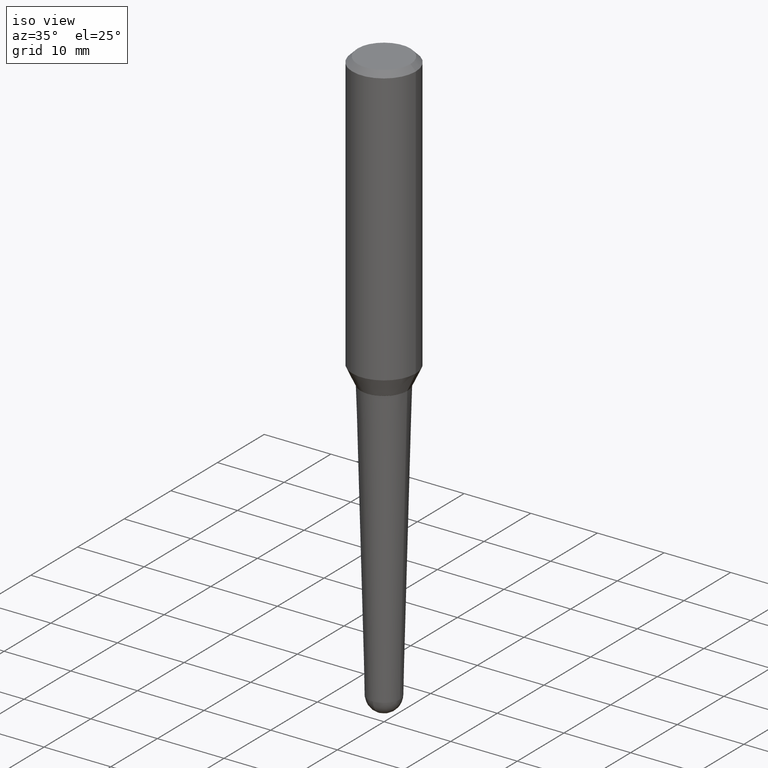
[diagram: clean part render]
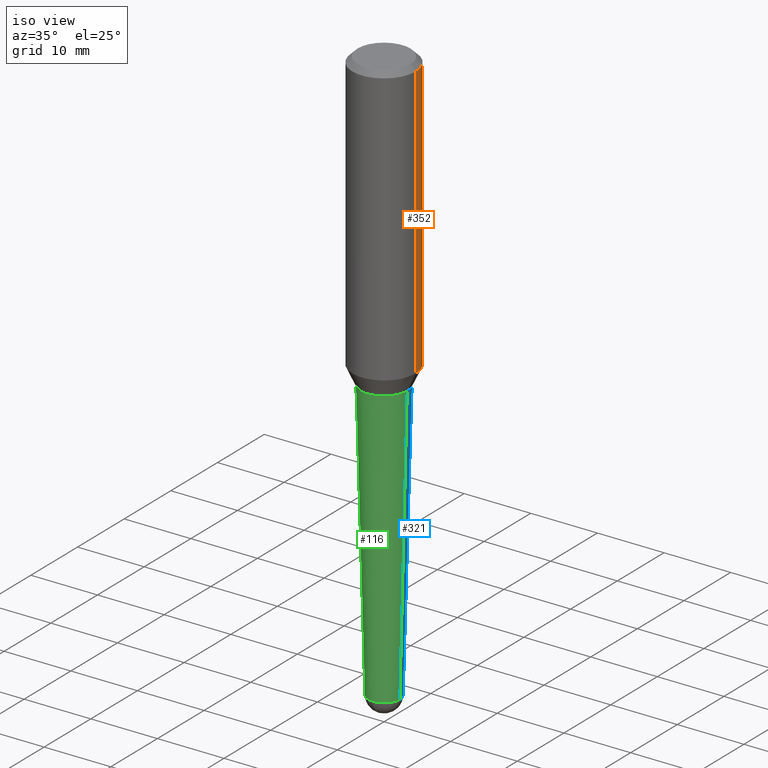
[diagram: same view with three faces highlighted in distinct colors, each labeled with its STEP entity id]
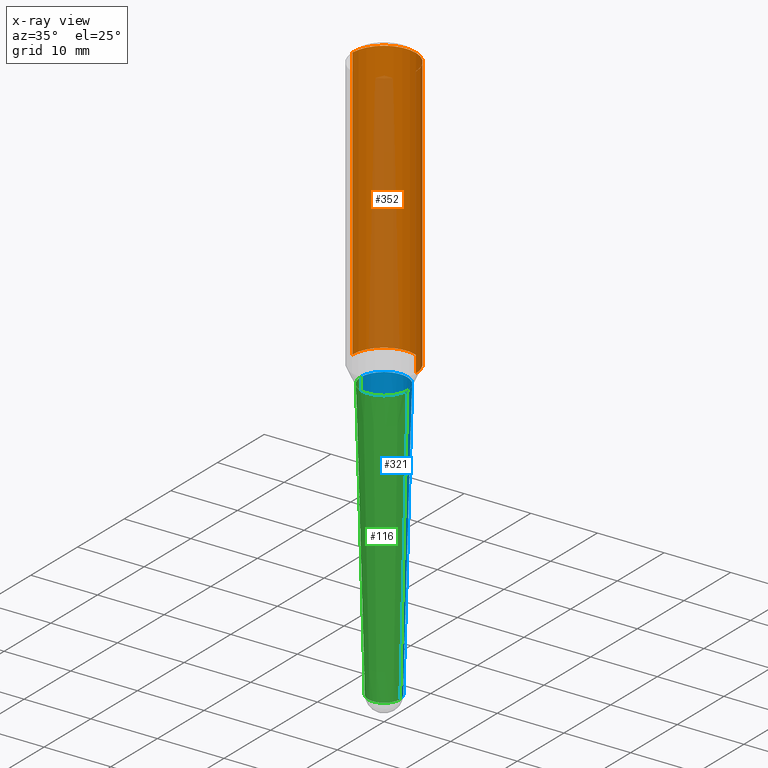
[diagram: x-ray of the same camera — body ghosted, the three highlighted faces saturated]
A machine part, iso view with three faces highlighted in distinct colors.
The next image is the same camera in x-ray (body ghosted, the three faces saturated) — at least one of them is partly hidden behind the body in this view.
Their STEP definitions:

[orange] entity #352 — the highlighted cylindrical surface (partial cylindrical patch) has radius 4.7625 mm, axis along (-0, 0, 1).
#49 = VERTEX_POINT ( 'NONE', #69 ) ;
#50 = DIRECTION ( 'NONE',  ( -2.445468806185136597E-29, 3.491481338843145583E-15, 1.000000000000000000 ) ) ;
#54 = CARTESIAN_POINT ( 'NONE',  ( -0.1875000000000001110, 1.332267629550190807E-15, 5.931196827434205055E-16 ) ) ;
#69 = CARTESIAN_POINT ( 'NONE',  ( -0.1874999999999999722, -1.591897828901198296E-15, -0.03125000000000003469 ) ) ;
#83 = VECTOR ( 'NONE', #419, 39.37007874015748143 ) ;
#101 = ORIENTED_EDGE ( 'NONE', *, *, #399, .T. ) ;
#109 = VECTOR ( 'NONE', #293, 39.37007874015748143 ) ;
#115 = DIRECTION ( 'NONE',  ( -2.445468806185136597E-29, 3.491481338843145583E-15, 1.000000000000000000 ) ) ;
#152 = LINE ( 'NONE', #54, #83 ) ;
#185 = CARTESIAN_POINT ( 'NONE',  ( 0.1875000000000002220, -7.048527627130101747E-15, -1.643778547865743178 ) ) ;
#192 = DIRECTION ( 'NONE',  ( 1.000000000000000000, -6.982962677686265133E-15, 0.000000000000000000 ) ) ;
#194 = CARTESIAN_POINT ( 'NONE',  ( 0.1874999999999999722, -1.418414293905023123E-15, -0.03125000000000003469 ) ) ;
#210 = CIRCLE ( 'NONE', #415, 0.1874999999999999722 ) ;
#212 = ORIENTED_EDGE ( 'NONE', *, *, #372, .T. ) ;
#232 = FACE_OUTER_BOUND ( 'NONE', #412, .T. ) ;
#257 = CIRCLE ( 'NONE', #413, 0.1875000000000002220 ) ;
#286 = AXIS2_PLACEMENT_3D ( 'NONE', #302, #115, #332 ) ;
#293 = DIRECTION ( 'NONE',  ( -2.445468806185136877E-29, 3.491481338843145188E-15, 1.000000000000000000 ) ) ;
#302 = CARTESIAN_POINT ( 'NONE',  ( -1.450455682483482035E-44, 2.070866303999251778E-30, 5.931196827434296760E-16 ) ) ;
#332 = DIRECTION ( 'NONE',  ( 1.000000000000000000, -6.982962677686266711E-15, 4.852736867747363404E-29 ) ) ;
#340 = LINE ( 'NONE', #416, #109 ) ;
#341 = CARTESIAN_POINT ( 'NONE',  ( -0.1875000000000002220, -4.406954495513735735E-15, -1.643778547865743178 ) ) ;
#344 = VERTEX_POINT ( 'NONE', #194 ) ;
#352 = ADVANCED_FACE ( 'NONE', ( #232 ), #457, .T. ) ;
#355 = VERTEX_POINT ( 'NONE', #341 ) ;
#364 = ORIENTED_EDGE ( 'NONE', *, *, #423, .F. ) ;
#365 = DIRECTION ( 'NONE',  ( -2.445468806185136597E-29, 3.491481338843145583E-15, 1.000000000000000000 ) ) ;
#372 = EDGE_CURVE ( 'NONE', #355, #49, #152, .T. ) ;
#399 = EDGE_CURVE ( 'NONE', #418, #355, #257, .T. ) ;
#400 = CARTESIAN_POINT ( 'NONE',  ( 7.642090019328561499E-31, -1.091087918388484350E-16, -0.03125000000000003469 ) ) ;
#406 = CARTESIAN_POINT ( 'NONE',  ( 4.019809163081975824E-29, -5.739222125063926739E-15, -1.643778547865743178 ) ) ;
#412 = EDGE_LOOP ( 'NONE', ( #101, #212, #364, #462 ) ) ;
#413 = AXIS2_PLACEMENT_3D ( 'NONE', #406, #365, #192 ) ;
#415 = AXIS2_PLACEMENT_3D ( 'NONE', #400, #50, #446 ) ;
#416 = CARTESIAN_POINT ( 'NONE',  ( 0.1875000000000001110, -1.309305502066173628E-15, 5.931196827434387479E-16 ) ) ;
#418 = VERTEX_POINT ( 'NONE', #185 ) ;
#419 = DIRECTION ( 'NONE',  ( -2.445468806185136877E-29, 3.491481338843145188E-15, 1.000000000000000000 ) ) ;
#423 = EDGE_CURVE ( 'NONE', #344, #49, #210, .T. ) ;
#433 = EDGE_CURVE ( 'NONE', #418, #344, #340, .T. ) ;
#446 = DIRECTION ( 'NONE',  ( 1.000000000000000000, -6.982962677686266711E-15, 0.000000000000000000 ) ) ;
#457 = CYLINDRICAL_SURFACE ( 'NONE', #286, 0.1875000000000001110 ) ;
#462 = ORIENTED_EDGE ( 'NONE', *, *, #433, .F. ) ;

[blue] entity #321 — the highlighted conical surface has half-angle 1.5 deg.
#10 = CIRCLE ( 'NONE', #269, 0.09376785708270754527 ) ;
#19 = CARTESIAN_POINT ( 'NONE',  ( 0.1372012772385309831, -7.068163741263051680E-15, -1.750000000000000000 ) ) ;
#20 = CARTESIAN_POINT ( 'NONE',  ( -0.09376785708270754527, -8.185107324501751393E-15, -3.408655397751278571 ) ) ;
#24 = CARTESIAN_POINT ( 'NONE',  ( -0.1372012772385309831, -5.135218634187045014E-15, -1.750000000000000000 ) ) ;
#27 = LINE ( 'NONE', #57, #279 ) ;
#34 = AXIS2_PLACEMENT_3D ( 'NONE', #281, #214, #284 ) ;
#57 = CARTESIAN_POINT ( 'NONE',  ( 0.09376785708270754527, -1.255603415817071505E-14, -3.408655397751278571 ) ) ;
#61 = ORIENTED_EDGE ( 'NONE', *, *, #322, .T. ) ;
#62 = CARTESIAN_POINT ( 'NONE',  ( 8.335760446235340310E-29, -1.190125671179554785E-14, -3.408655397751278571 ) ) ;
#91 = CARTESIAN_POINT ( 'NONE',  ( 4.279570410823988484E-29, -6.110092342975504671E-15, -1.750000000000000000 ) ) ;
#120 = DIRECTION ( 'NONE',  ( -2.445468806185136597E-29, 3.491481338843145583E-15, 1.000000000000000000 ) ) ;
#128 = DIRECTION ( 'NONE',  ( 0.02617694830787308663, 3.307492242340416220E-15, 0.9996573249755572599 ) ) ;
#137 = AXIS2_PLACEMENT_3D ( 'NONE', #91, #304, #233 ) ;
#164 = DIRECTION ( 'NONE',  ( -2.445468806185136597E-29, 3.491481338843145583E-15, 1.000000000000000000 ) ) ;
#169 = CARTESIAN_POINT ( 'NONE',  ( 8.335760446235340310E-29, -1.190125671179554785E-14, -3.408655397751278571 ) ) ;
#170 = CONICAL_SURFACE ( 'NONE', #34, 0.09376785708270754527, 0.02617993877991487903 ) ;
#172 = VERTEX_POINT ( 'NONE', #202 ) ;
#173 = EDGE_CURVE ( 'NONE', #184, #241, #348, .T. ) ;
#180 = EDGE_CURVE ( 'NONE', #287, #405, #27, .T. ) ;
#184 = VERTEX_POINT ( 'NONE', #20 ) ;
#188 = ORIENTED_EDGE ( 'NONE', *, *, #173, .T. ) ;
#202 = CARTESIAN_POINT ( 'NONE',  ( 6.547774463752502348E-16, 0.09376785708269567976, -3.408655397751279015 ) ) ;
#206 = FACE_OUTER_BOUND ( 'NONE', #298, .T. ) ;
#214 = DIRECTION ( 'NONE',  ( -2.445468806185136597E-29, 3.491481338843145583E-15, 1.000000000000000000 ) ) ;
#216 = VECTOR ( 'NONE', #264, 39.37007874015748854 ) ;
#217 = EDGE_CURVE ( 'NONE', #405, #241, #369, .T. ) ;
#233 = DIRECTION ( 'NONE',  ( 1.000000000000000000, -6.982962677686269866E-15, 0.000000000000000000 ) ) ;
#241 = VERTEX_POINT ( 'NONE', #24 ) ;
#249 = ORIENTED_EDGE ( 'NONE', *, *, #217, .F. ) ;
#263 = DIRECTION ( 'NONE',  ( 1.000000000000000000, -6.982962677686274599E-15, 0.000000000000000000 ) ) ;
#264 = DIRECTION ( 'NONE',  ( -0.02617694830787308663, 3.676283300035285798E-15, 0.9996573249755572599 ) ) ;
#269 = AXIS2_PLACEMENT_3D ( 'NONE', #62, #120, #263 ) ;
#278 = ORIENTED_EDGE ( 'NONE', *, *, #383, .T. ) ;
#279 = VECTOR ( 'NONE', #128, 39.37007874015748854 ) ;
#281 = CARTESIAN_POINT ( 'NONE',  ( 8.335760446235340310E-29, -1.190125671179554785E-14, -3.408655397751278571 ) ) ;
#284 = DIRECTION ( 'NONE',  ( 1.000000000000000000, -6.982962677686274599E-15, 0.000000000000000000 ) ) ;
#287 = VERTEX_POINT ( 'NONE', #307 ) ;
#298 = EDGE_LOOP ( 'NONE', ( #61, #188, #249, #456, #278 ) ) ;
#304 = DIRECTION ( 'NONE',  ( -2.445468806185136597E-29, 3.491481338843145583E-15, 1.000000000000000000 ) ) ;
#306 = CIRCLE ( 'NONE', #444, 0.09376785708270754527 ) ;
#307 = CARTESIAN_POINT ( 'NONE',  ( 0.09376785708270754527, -9.812098949716884549E-15, -3.408655397751278571 ) ) ;
#321 = ADVANCED_FACE ( 'NONE', ( #206 ), #170, .T. ) ;
#322 = EDGE_CURVE ( 'NONE', #172, #184, #306, .T. ) ;
#337 = CARTESIAN_POINT ( 'NONE',  ( -0.09376785708270754527, -1.123499601481645619E-14, -3.408655397751278571 ) ) ;
#348 = LINE ( 'NONE', #337, #216 ) ;
#369 = CIRCLE ( 'NONE', #137, 0.1372012772385309831 ) ;
#383 = EDGE_CURVE ( 'NONE', #287, #172, #10, .T. ) ;
#405 = VERTEX_POINT ( 'NONE', #19 ) ;
#444 = AXIS2_PLACEMENT_3D ( 'NONE', #169, #164, #461 ) ;
#456 = ORIENTED_EDGE ( 'NONE', *, *, #180, .F. ) ;
#461 = DIRECTION ( 'NONE',  ( 1.000000000000000000, -6.982962677686274599E-15, 0.000000000000000000 ) ) ;

[green] entity #116 — the highlighted conical surface has half-angle 1.5 deg.
#1 = CARTESIAN_POINT ( 'NONE',  ( 8.335760446235340310E-29, -1.190125671179554785E-14, -3.408655397751278571 ) ) ;
#19 = CARTESIAN_POINT ( 'NONE',  ( 0.1372012772385309831, -7.068163741263051680E-15, -1.750000000000000000 ) ) ;
#20 = CARTESIAN_POINT ( 'NONE',  ( -0.09376785708270754527, -8.185107324501751393E-15, -3.408655397751278571 ) ) ;
#24 = CARTESIAN_POINT ( 'NONE',  ( -0.1372012772385309831, -5.135218634187045014E-15, -1.750000000000000000 ) ) ;
#27 = LINE ( 'NONE', #57, #279 ) ;
#32 = DIRECTION ( 'NONE',  ( -2.445468806185136597E-29, 3.491481338843145583E-15, 1.000000000000000000 ) ) ;
#33 = DIRECTION ( 'NONE',  ( 1.000000000000000000, -6.982962677686269866E-15, 0.000000000000000000 ) ) ;
#36 = EDGE_CURVE ( 'NONE', #184, #267, #350, .T. ) ;
#48 = EDGE_CURVE ( 'NONE', #241, #405, #94, .T. ) ;
#57 = CARTESIAN_POINT ( 'NONE',  ( 0.09376785708270754527, -1.255603415817071505E-14, -3.408655397751278571 ) ) ;
#71 = EDGE_LOOP ( 'NONE', ( #441, #319, #203, #262, #99 ) ) ;
#79 = AXIS2_PLACEMENT_3D ( 'NONE', #291, #437, #397 ) ;
#94 = CIRCLE ( 'NONE', #255, 0.1372012772385309831 ) ;
#99 = ORIENTED_EDGE ( 'NONE', *, *, #48, .F. ) ;
#104 = DIRECTION ( 'NONE',  ( -2.445468806185136597E-29, 3.491481338843145583E-15, 1.000000000000000000 ) ) ;
#116 = ADVANCED_FACE ( 'NONE', ( #147 ), #127, .T. ) ;
#127 = CONICAL_SURFACE ( 'NONE', #79, 0.09376785708270754527, 0.02617993877991487903 ) ;
#128 = DIRECTION ( 'NONE',  ( 0.02617694830787308663, 3.307492242340416220E-15, 0.9996573249755572599 ) ) ;
#132 = AXIS2_PLACEMENT_3D ( 'NONE', #1, #104, #389 ) ;
#147 = FACE_OUTER_BOUND ( 'NONE', #71, .T. ) ;
#173 = EDGE_CURVE ( 'NONE', #184, #241, #348, .T. ) ;
#180 = EDGE_CURVE ( 'NONE', #287, #405, #27, .T. ) ;
#184 = VERTEX_POINT ( 'NONE', #20 ) ;
#203 = ORIENTED_EDGE ( 'NONE', *, *, #460, .T. ) ;
#216 = VECTOR ( 'NONE', #264, 39.37007874015748854 ) ;
#241 = VERTEX_POINT ( 'NONE', #24 ) ;
#255 = AXIS2_PLACEMENT_3D ( 'NONE', #384, #432, #33 ) ;
#262 = ORIENTED_EDGE ( 'NONE', *, *, #180, .T. ) ;
#264 = DIRECTION ( 'NONE',  ( -0.02617694830787308663, 3.676283300035285798E-15, 0.9996573249755572599 ) ) ;
#267 = VERTEX_POINT ( 'NONE', #271 ) ;
#271 = CARTESIAN_POINT ( 'NONE',  ( -6.662606969790053702E-16, -0.09376785708271910547, -3.408655397751277683 ) ) ;
#277 = DIRECTION ( 'NONE',  ( 1.000000000000000000, -6.982962677686274599E-15, 0.000000000000000000 ) ) ;
#279 = VECTOR ( 'NONE', #128, 39.37007874015748854 ) ;
#287 = VERTEX_POINT ( 'NONE', #307 ) ;
#291 = CARTESIAN_POINT ( 'NONE',  ( 8.335760446235340310E-29, -1.190125671179554785E-14, -3.408655397751278571 ) ) ;
#307 = CARTESIAN_POINT ( 'NONE',  ( 0.09376785708270754527, -9.812098949716884549E-15, -3.408655397751278571 ) ) ;
#319 = ORIENTED_EDGE ( 'NONE', *, *, #36, .T. ) ;
#337 = CARTESIAN_POINT ( 'NONE',  ( -0.09376785708270754527, -1.123499601481645619E-14, -3.408655397751278571 ) ) ;
#348 = LINE ( 'NONE', #337, #216 ) ;
#350 = CIRCLE ( 'NONE', #132, 0.09376785708270754527 ) ;
#367 = AXIS2_PLACEMENT_3D ( 'NONE', #431, #32, #277 ) ;
#384 = CARTESIAN_POINT ( 'NONE',  ( 4.279570410823988484E-29, -6.110092342975504671E-15, -1.750000000000000000 ) ) ;
#389 = DIRECTION ( 'NONE',  ( 1.000000000000000000, -6.982962677686274599E-15, 0.000000000000000000 ) ) ;
#397 = DIRECTION ( 'NONE',  ( 1.000000000000000000, -6.982962677686274599E-15, 0.000000000000000000 ) ) ;
#405 = VERTEX_POINT ( 'NONE', #19 ) ;
#431 = CARTESIAN_POINT ( 'NONE',  ( 8.335760446235340310E-29, -1.190125671179554785E-14, -3.408655397751278571 ) ) ;
#432 = DIRECTION ( 'NONE',  ( -2.445468806185136597E-29, 3.491481338843145583E-15, 1.000000000000000000 ) ) ;
#437 = DIRECTION ( 'NONE',  ( -2.445468806185136597E-29, 3.491481338843145583E-15, 1.000000000000000000 ) ) ;
#441 = ORIENTED_EDGE ( 'NONE', *, *, #173, .F. ) ;
#442 = CIRCLE ( 'NONE', #367, 0.09376785708270754527 ) ;
#460 = EDGE_CURVE ( 'NONE', #267, #287, #442, .T. ) ;